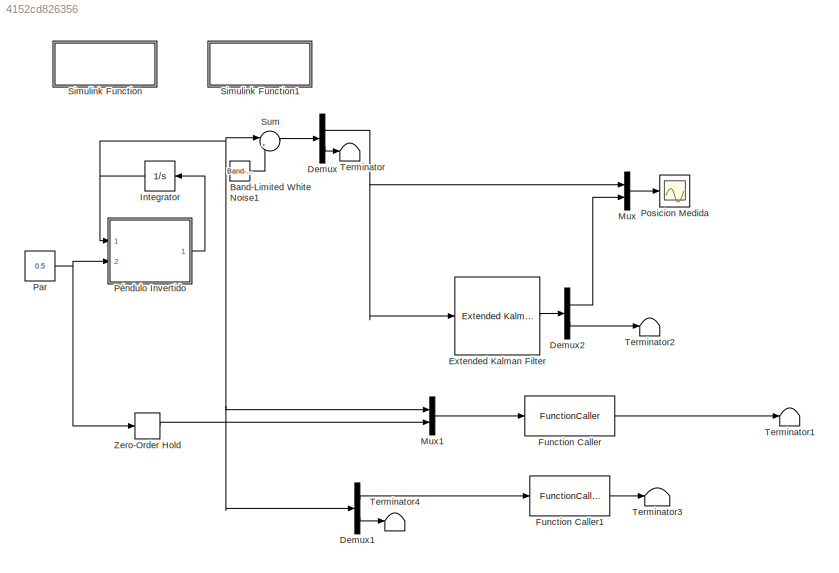
MODEL slx_4152cd826356
KIND model
CONFIG AbsTol = auto
CONFIG EnableMultiTasking = off
CONFIG FixedStep = auto
CONFIG MaxStep = auto
CONFIG MinStep = auto
CONFIG RelTol = 1e-3
CONFIG SampleTimeConstraint = Unconstrained
CONFIG Solver = VariableStepAuto
CONFIG SolverName = VariableStepAuto
CONFIG StartTime = 0.0
CONFIG StopTime = 15
BLOCK [Reference] Band-Limited White Noise1  REF=simulink/Sources/Band-Limited
White Noise
  Ports = [0, 1]
  SourceBlock = simulink/Sources/Band-Limited\nWhite Noise
  SourceProductBaseCode = SL
  SourceProductName = Simulink
  SourceType = Band-Limited White Noise.
BLOCK [Demux] Demux
  DisplayOption = bar
  Outputs = 2
  Ports = [1, 2]
BLOCK [Demux] Demux1
  DisplayOption = bar
  Outputs = 2
  Ports = [1, 2]
BLOCK [Demux] Demux2
  Commented = on
  DisplayOption = bar
  Outputs = 2
  Ports = [1, 2]
BLOCK [Reference] Extended Kalman Filter  REF=sharedTrackingLibrary/Extended Kalman Filter
  Commented = on
  Ports = [1, 1]
  SourceBlock = sharedTrackingLibrary/Extended Kalman Filter
  SourceProductBaseCode = DR
  SourceProductName = Automated Driving Toolbox
  SourceType = Extended Kalman Filter
BLOCK [FunctionCaller] Function Caller
  FunctionPrototype = x = PenduloInv(u)
  InputArgumentSpecifications = [1,3]
  OutputArgumentSpecifications = [1,3]
  Ports = [1, 1]
BLOCK [FunctionCaller] Function Caller1
  FunctionPrototype = x = Medida(x)
  InputArgumentSpecifications = 1
  OutputArgumentSpecifications = 1
  Ports = [1, 1]
BLOCK [Integrator] Integrator
  InitialCondition = [0;0]
  Ports = [1, 1]
BLOCK [Mux] Mux
  DisplayOption = bar
  Inputs = 2
  Ports = [2, 1]
BLOCK [Mux] Mux1
  DisplayOption = bar
  Inputs = 2
  Ports = [2, 1]
BLOCK [Constant] Par
  Value = 0.5
BLOCK [Scope] Posicion Medida
  Floating = off
  NumInputPorts = 1
  Ports = [1]
  ScopeSpecificationString = Simulink.scopes.TimeScopeBlockCfg('CurrentConfiguration', extmgr.ConfigurationSet(extmgr.Configuration('Core','General UI',true),extmgr.Configuration('Core','Source UI',true),extmgr.Configuration('Sources','WiredSimulink',true),extmgr.Configuration('Visuals','Time Domain',true,'SerializedDisplays',{struct('MinYLimReal','-1.0057','MaxYLimReal','8.93302','YLabelReal','','MinYLimMag','0.00000','MaxYL...<+1407ch>
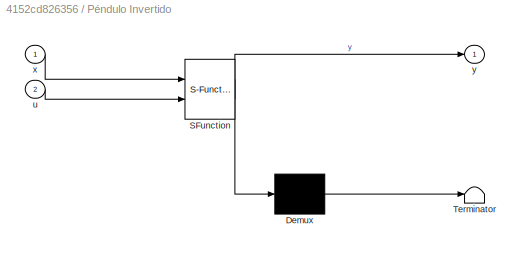
BLOCK [SubSystem] Péndulo Invertido
  ErrorFcn = Stateflow.Translate.translate
  PermitHierarchicalResolution = ExplicitOnly
  Ports = [2, 1]
  RequestExecContextInheritance = off
  SFBlockType = MATLAB Function
  TreatAsAtomicUnit = on
BLOCK [Demux] Péndulo Invertido/ Demux 
  Outputs = 1
  Ports = [1, 1]
BLOCK [S-Function] Péndulo Invertido/ SFunction 
  EnableBusSupport = on
  FunctionName = sf_sfun
  PortCounts = [2 2]
  Ports = [2, 2]
  SFcnIsStateOwnerBlock = off
  SFunctionDeploymentMode = off
  Tag = Stateflow S-Function 2
BLOCK [Terminator] Péndulo Invertido/ Terminator 
BLOCK [Inport] Péndulo Invertido/u
  IconDisplay = Port number
  Port = 2
BLOCK [Inport] Péndulo Invertido/x
  IconDisplay = Port number
BLOCK [Outport] Péndulo Invertido/y
  IconDisplay = Port number
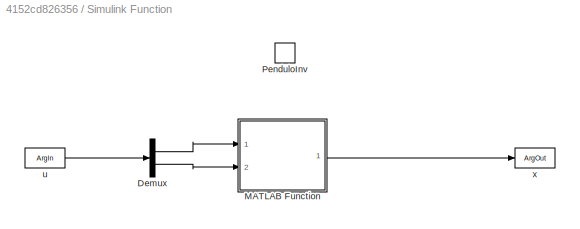
BLOCK [SubSystem] Simulink Function
  Ports = [0, 0, 0, 1]
  RequestExecContextInheritance = off
  TreatAsAtomicUnit = on
BLOCK [Demux] Simulink Function/Demux
  DisplayOption = bar
  Outputs = 2
  Ports = [1, 2]
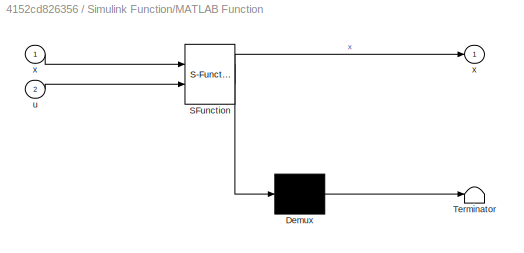
BLOCK [SubSystem] Simulink Function/MATLAB Function
  ErrorFcn = Stateflow.Translate.translate
  PermitHierarchicalResolution = ExplicitOnly
  Ports = [2, 1]
  RequestExecContextInheritance = off
  SFBlockType = MATLAB Function
  TreatAsAtomicUnit = on
BLOCK [Demux] Simulink Function/MATLAB Function/ Demux 
  Outputs = 1
  Ports = [1, 1]
BLOCK [S-Function] Simulink Function/MATLAB Function/ SFunction 
  EnableBusSupport = on
  FunctionName = sf_sfun
  PortCounts = [2 2]
  Ports = [2, 2]
  SFcnIsStateOwnerBlock = off
  SFunctionDeploymentMode = off
  Tag = Stateflow S-Function 1
BLOCK [Terminator] Simulink Function/MATLAB Function/ Terminator 
BLOCK [Inport] Simulink Function/MATLAB Function/u
  IconDisplay = Port number
  Port = 2
BLOCK [Outport] Simulink Function/MATLAB Function/x
  IconDisplay = Port number
BLOCK [Inport] Simulink Function/MATLAB Function/x 
  IconDisplay = Port number
BLOCK [TriggerPort] Simulink Function/PenduloInv
  FunctionName = PenduloInv
  IsSimulinkFunction = on
  Ports = []
  StatesWhenEnabling = held
  TriggerType = function-call
  Variant = on
  VariantControl = (inherit)
BLOCK [ArgIn] Simulink Function/u
  ArgumentName = u
  DisableCoverage = on
  PortDimensions = [1,3]
BLOCK [ArgOut] Simulink Function/x
  ArgumentName = x
  DisableCoverage = on
  PortDimensions = [1,2]
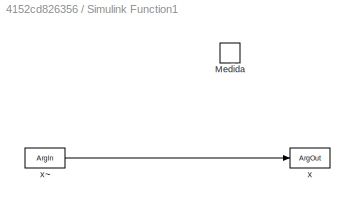
BLOCK [SubSystem] Simulink Function1
  Ports = [0, 0, 0, 1]
  RequestExecContextInheritance = off
  TreatAsAtomicUnit = on
BLOCK [TriggerPort] Simulink Function1/Medida
  FunctionName = Medida
  FunctionVisibility = scoped
  IsSimulinkFunction = on
  Ports = []
  StatesWhenEnabling = held
  TriggerType = function-call
  VariantControl = (inherit)
BLOCK [ArgOut] Simulink Function1/x
  ArgumentName = x
  DisableCoverage = on
BLOCK [ArgIn] Simulink Function1/x~
  ArgumentName = x
  DisableCoverage = on
BLOCK [Sum] Sum
  IconShape = round
  InputSameDT = off
  Inputs = |++
  OutDataTypeStr = Inherit: Inherit via internal rule
  Ports = [2, 1]
  SaturateOnIntegerOverflow = off
BLOCK [Terminator] Terminator
BLOCK [Terminator] Terminator1
BLOCK [Terminator] Terminator2
  Commented = on
BLOCK [Terminator] Terminator3
BLOCK [Terminator] Terminator4
BLOCK [ZeroOrderHold] Zero-Order Hold
  SampleTime = 0.02
LINE Band-Limited White Noise1:1 -> Sum:2
LINE Demux1:1 -> Function Caller1:1
LINE Demux1:2 -> Terminator4:1
LINE Demux2:1 -> Mux:2
LINE Demux2:2 -> Terminator2:1
NET Demux:1 -> Extended Kalman Filter:1, Mux:1
LINE Demux:2 -> Terminator:1
LINE Extended Kalman Filter:1 -> Demux2:1
LINE Function Caller1:1 -> Terminator3:1
LINE Function Caller:1 -> Terminator1:1
NET Integrator:1 -> Demux1:1, Mux1:1, Péndulo Invertido:1, Sum:1
LINE Mux1:1 -> Function Caller:1
LINE Mux:1 -> Posicion Medida:1
NET Par:1 -> Péndulo Invertido:2, Zero-Order Hold:1
LINE Péndulo Invertido:1 -> Integrator:1
LINE Simulink Function/Demux:1 -> Simulink Function/MATLAB Function:1
LINE Simulink Function/Demux:2 -> Simulink Function/MATLAB Function:2
LINE Simulink Function/MATLAB Function:1 -> Simulink Function/x:1
LINE Simulink Function/u:1 -> Simulink Function/Demux:1
LINE Simulink Function1/x~:1 -> Simulink Function1/x:1
LINE Sum:1 -> Demux:1
LINE Zero-Order Hold:1 -> Mux1:2
note: NET lines group one-source signal fan-out (src -> all destinations, sorted); 1:1 wires keep LINE
CHART Simulink Function/MATLAB Function states=1 transitions=1
  STATE_LABEL 'eML_blk_kernel()'
  STATE_LABEL 'SCRIPT:\nfunction x = PenduloInv(x,u)\n%Constantes del sistema\ng=9.81;\nl=1;\nm=0.75;\nb=0.5;\n\n%Tiempo de muestreo\nt = 0.01;\n\nx = x+[x(2);(g/l)*sin(x(1))-(b/(m*l^2))*x(2)+(1/(m*l^2))*u]*t;\n\nend'
CHART Péndulo
Invertido states=1 transitions=1
  STATE_LABEL 'eML_blk_kernel()'
  STATE_LABEL 'SCRIPT:\nfunction y  = fcn(x,u)\ng=9.81;\nl=1;\nm=0.75;\nb=0.5;\n\nx1 = x(1);\nx2 = x(2);\n\nxp=[x2;(g/l)*sin(x1)-(b/(m*l^2))*x2+(1/(m*l^2))*u];\n\ny = xp;'
